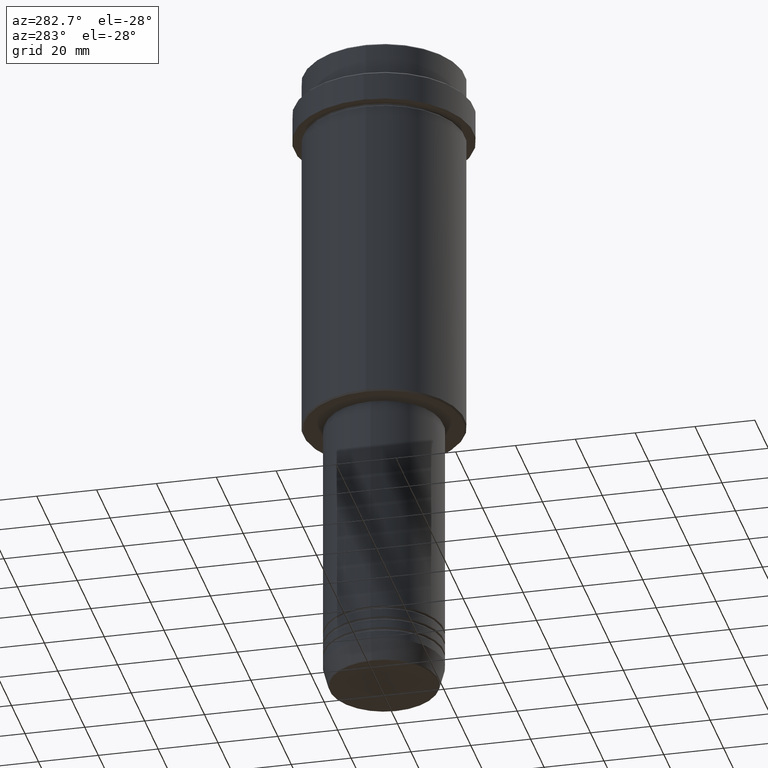
[diagram: clean part render]
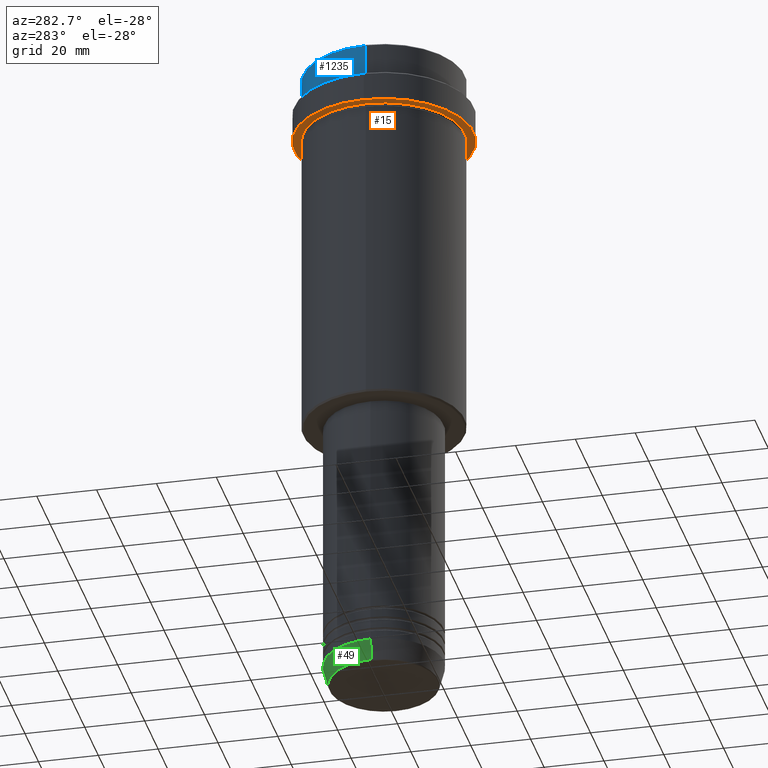
[diagram: same view with three faces highlighted in distinct colors, each labeled with its STEP entity id]
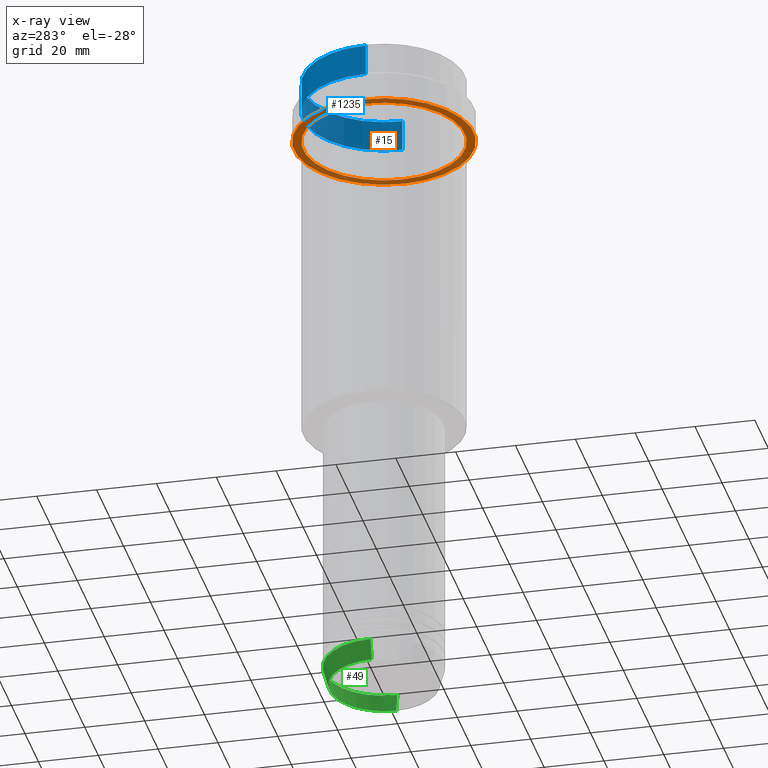
[diagram: x-ray of the same camera — body ghosted, the three highlighted faces saturated]
A machine part, auxiliary view with three faces highlighted in distinct colors.
The next image is the same camera in x-ray (body ghosted, the three faces saturated) — at least one of them is partly hidden behind the body in this view.
Their STEP definitions:

[orange] entity #15 — the highlighted planar face has unit normal (0, 0, -1).
#5 = ORIENTED_EDGE ( 'NONE', *, *, #497, .F. ) ;
#10 = AXIS2_PLACEMENT_3D ( 'NONE', #429, #873, #1180 ) ;
#15 = ADVANCED_FACE ( 'NONE', ( #491, #822 ), #285, .T. ) ;
#88 = VERTEX_POINT ( 'NONE', #598 ) ;
#116 = CIRCLE ( 'NONE', #790, 26.99999999999999289 ) ;
#132 = ORIENTED_EDGE ( 'NONE', *, *, #1120, .F. ) ;
#158 = DIRECTION ( 'NONE',  ( 1.000000000000000000, 0.000000000000000000, 0.000000000000000000 ) ) ;
#159 = VERTEX_POINT ( 'NONE', #1395 ) ;
#170 = CARTESIAN_POINT ( 'NONE',  ( 0.000000000000000000, 0.000000000000000000, -22.00000000000000000 ) ) ;
#285 = PLANE ( 'NONE',  #538 ) ;
#307 = EDGE_LOOP ( 'NONE', ( #1074, #467 ) ) ;
#347 = CARTESIAN_POINT ( 'NONE',  ( -26.99999999999999289, 0.000000000000000000, -22.00000000000000000 ) ) ;
#429 = CARTESIAN_POINT ( 'NONE',  ( 0.000000000000000000, 0.000000000000000000, -22.00000000000000355 ) ) ;
#431 = CIRCLE ( 'NONE', #454, 26.99999999999999289 ) ;
#454 = AXIS2_PLACEMENT_3D ( 'NONE', #1082, #659, #554 ) ;
#467 = ORIENTED_EDGE ( 'NONE', *, *, #512, .T. ) ;
#491 = FACE_BOUND ( 'NONE', #307, .T. ) ;
#497 = EDGE_CURVE ( 'NONE', #88, #501, #517, .T. ) ;
#501 = VERTEX_POINT ( 'NONE', #1138 ) ;
#504 = DIRECTION ( 'NONE',  ( -1.000000000000000000, 0.000000000000000000, 0.000000000000000000 ) ) ;
#512 = EDGE_CURVE ( 'NONE', #159, #1250, #116, .T. ) ;
#517 = CIRCLE ( 'NONE', #610, 29.99999999999999645 ) ;
#538 = AXIS2_PLACEMENT_3D ( 'NONE', #604, #1359, #1037 ) ;
#554 = DIRECTION ( 'NONE',  ( -1.000000000000000000, 0.000000000000000000, 0.000000000000000000 ) ) ;
#598 = CARTESIAN_POINT ( 'NONE',  ( 29.99999999999999645, 0.000000000000000000, -22.00000000000000355 ) ) ;
#604 = CARTESIAN_POINT ( 'NONE',  ( 0.000000000000000000, 29.99999999999999645, -22.00000000000000000 ) ) ;
#610 = AXIS2_PLACEMENT_3D ( 'NONE', #1337, #1149, #158 ) ;
#659 = DIRECTION ( 'NONE',  ( -0.000000000000000000, -0.000000000000000000, 1.000000000000000000 ) ) ;
#785 = CIRCLE ( 'NONE', #10, 29.99999999999999645 ) ;
#790 = AXIS2_PLACEMENT_3D ( 'NONE', #170, #1036, #504 ) ;
#822 = FACE_OUTER_BOUND ( 'NONE', #1200, .T. ) ;
#873 = DIRECTION ( 'NONE',  ( -0.000000000000000000, -0.000000000000000000, 1.000000000000000000 ) ) ;
#1036 = DIRECTION ( 'NONE',  ( -0.000000000000000000, -0.000000000000000000, 1.000000000000000000 ) ) ;
#1037 = DIRECTION ( 'NONE',  ( -1.000000000000000000, 0.000000000000000000, -0.000000000000000000 ) ) ;
#1074 = ORIENTED_EDGE ( 'NONE', *, *, #1095, .T. ) ;
#1082 = CARTESIAN_POINT ( 'NONE',  ( 0.000000000000000000, 0.000000000000000000, -22.00000000000000000 ) ) ;
#1095 = EDGE_CURVE ( 'NONE', #1250, #159, #431, .T. ) ;
#1120 = EDGE_CURVE ( 'NONE', #501, #88, #785, .T. ) ;
#1138 = CARTESIAN_POINT ( 'NONE',  ( -29.99999999999999645, 3.673940397442058389E-15, -22.00000000000000355 ) ) ;
#1149 = DIRECTION ( 'NONE',  ( -0.000000000000000000, -0.000000000000000000, 1.000000000000000000 ) ) ;
#1180 = DIRECTION ( 'NONE',  ( 1.000000000000000000, 0.000000000000000000, 0.000000000000000000 ) ) ;
#1200 = EDGE_LOOP ( 'NONE', ( #5, #132 ) ) ;
#1250 = VERTEX_POINT ( 'NONE', #347 ) ;
#1337 = CARTESIAN_POINT ( 'NONE',  ( 0.000000000000000000, 0.000000000000000000, -22.00000000000000355 ) ) ;
#1359 = DIRECTION ( 'NONE',  ( 0.000000000000000000, 0.000000000000000000, -1.000000000000000000 ) ) ;
#1395 = CARTESIAN_POINT ( 'NONE',  ( 26.99999999999999289, 3.306546357697852944E-15, -22.00000000000000000 ) ) ;

[blue] entity #1235 — the highlighted cylindrical surface (partial cylindrical patch) has radius 27 mm, axis along (-0, -0, 1).
#13 = DIRECTION ( 'NONE',  ( 1.000000000000000000, 0.000000000000000000, 0.000000000000000000 ) ) ;
#26 = LINE ( 'NONE', #229, #281 ) ;
#43 = CARTESIAN_POINT ( 'NONE',  ( -26.99999999999999645, 3.306546357697853339E-15, -11.00000000000000178 ) ) ;
#80 = DIRECTION ( 'NONE',  ( -0.000000000000000000, -0.000000000000000000, 1.000000000000000000 ) ) ;
#82 = VERTEX_POINT ( 'NONE', #172 ) ;
#115 = EDGE_CURVE ( 'NONE', #355, #473, #1278, .T. ) ;
#163 = CIRCLE ( 'NONE', #587, 26.99999999999999645 ) ;
#172 = CARTESIAN_POINT ( 'NONE',  ( -26.99999999999999645, 3.306546357697853339E-15, -0.4999999999999761302 ) ) ;
#193 = CARTESIAN_POINT ( 'NONE',  ( 0.000000000000000000, 0.000000000000000000, -11.00000000000000178 ) ) ;
#204 = ORIENTED_EDGE ( 'NONE', *, *, #115, .T. ) ;
#229 = CARTESIAN_POINT ( 'NONE',  ( -26.99999999999999645, 3.306546357697853339E-15, 0.000000000000000000 ) ) ;
#281 = VECTOR ( 'NONE', #900, 1000.000000000000000 ) ;
#355 = VERTEX_POINT ( 'NONE', #892 ) ;
#413 = ORIENTED_EDGE ( 'NONE', *, *, #528, .T. ) ;
#473 = VERTEX_POINT ( 'NONE', #43 ) ;
#486 = FACE_OUTER_BOUND ( 'NONE', #489, .T. ) ;
#489 = EDGE_LOOP ( 'NONE', ( #204, #1390, #413, #936 ) ) ;
#490 = DIRECTION ( 'NONE',  ( 0.000000000000000000, 0.000000000000000000, -1.000000000000000000 ) ) ;
#498 = VECTOR ( 'NONE', #1222, 1000.000000000000000 ) ;
#528 = EDGE_CURVE ( 'NONE', #82, #964, #163, .T. ) ;
#587 = AXIS2_PLACEMENT_3D ( 'NONE', #1027, #490, #924 ) ;
#771 = LINE ( 'NONE', #1102, #498 ) ;
#774 = CARTESIAN_POINT ( 'NONE',  ( 0.000000000000000000, 0.000000000000000000, 0.000000000000000000 ) ) ;
#830 = CARTESIAN_POINT ( 'NONE',  ( 26.99999999999999645, 0.000000000000000000, -0.4999999999999761302 ) ) ;
#871 = EDGE_CURVE ( 'NONE', #355, #964, #771, .T. ) ;
#883 = AXIS2_PLACEMENT_3D ( 'NONE', #193, #80, #1284 ) ;
#892 = CARTESIAN_POINT ( 'NONE',  ( 26.99999999999999645, 0.000000000000000000, -11.00000000000000178 ) ) ;
#900 = DIRECTION ( 'NONE',  ( -0.000000000000000000, -0.000000000000000000, 1.000000000000000000 ) ) ;
#924 = DIRECTION ( 'NONE',  ( 1.000000000000000000, 0.000000000000000000, 0.000000000000000000 ) ) ;
#936 = ORIENTED_EDGE ( 'NONE', *, *, #871, .F. ) ;
#964 = VERTEX_POINT ( 'NONE', #830 ) ;
#1027 = CARTESIAN_POINT ( 'NONE',  ( 0.000000000000000000, 0.000000000000000000, -0.4999999999999761302 ) ) ;
#1102 = CARTESIAN_POINT ( 'NONE',  ( 26.99999999999999645, 0.000000000000000000, 0.000000000000000000 ) ) ;
#1116 = CYLINDRICAL_SURFACE ( 'NONE', #1186, 26.99999999999999645 ) ;
#1186 = AXIS2_PLACEMENT_3D ( 'NONE', #774, #1323, #13 ) ;
#1222 = DIRECTION ( 'NONE',  ( -0.000000000000000000, -0.000000000000000000, 1.000000000000000000 ) ) ;
#1235 = ADVANCED_FACE ( 'NONE', ( #486 ), #1116, .T. ) ;
#1252 = EDGE_CURVE ( 'NONE', #473, #82, #26, .T. ) ;
#1278 = CIRCLE ( 'NONE', #883, 26.99999999999999645 ) ;
#1284 = DIRECTION ( 'NONE',  ( 1.000000000000000000, 0.000000000000000000, 0.000000000000000000 ) ) ;
#1323 = DIRECTION ( 'NONE',  ( -0.000000000000000000, -0.000000000000000000, 1.000000000000000000 ) ) ;
#1390 = ORIENTED_EDGE ( 'NONE', *, *, #1252, .T. ) ;

[green] entity #49 — the highlighted conical surface has half-angle 15 deg.
#36 = CARTESIAN_POINT ( 'NONE',  ( -18.22365507213718772, 2.340523841790264718E-15, -222.6294095225512706 ) ) ;
#49 = ADVANCED_FACE ( 'NONE', ( #264 ), #282, .T. ) ;
#136 = CARTESIAN_POINT ( 'NONE',  ( 18.22365507213718772, 0.000000000000000000, -222.6294095225512706 ) ) ;
#147 = DIRECTION ( 'NONE',  ( -0.000000000000000000, -0.000000000000000000, 1.000000000000000000 ) ) ;
#153 = LINE ( 'NONE', #605, #424 ) ;
#195 = EDGE_CURVE ( 'NONE', #416, #688, #354, .T. ) ;
#245 = ORIENTED_EDGE ( 'NONE', *, *, #195, .F. ) ;
#264 = FACE_OUTER_BOUND ( 'NONE', #955, .T. ) ;
#282 = CONICAL_SURFACE ( 'NONE', #1328, 20.00000000000000000, 0.2617993877991500740 ) ;
#291 = LINE ( 'NONE', #968, #718 ) ;
#319 = DIRECTION ( 'NONE',  ( -0.000000000000000000, -0.000000000000000000, 1.000000000000000000 ) ) ;
#323 = ORIENTED_EDGE ( 'NONE', *, *, #556, .T. ) ;
#354 = CIRCLE ( 'NONE', #699, 20.00000000000000000 ) ;
#371 = DIRECTION ( 'NONE',  ( 1.000000000000000000, 0.000000000000000000, 0.000000000000000000 ) ) ;
#416 = VERTEX_POINT ( 'NONE', #1230 ) ;
#424 = VECTOR ( 'NONE', #823, 1000.000000000000000 ) ;
#430 = ORIENTED_EDGE ( 'NONE', *, *, #1365, .F. ) ;
#456 = EDGE_CURVE ( 'NONE', #993, #459, #999, .T. ) ;
#459 = VERTEX_POINT ( 'NONE', #36 ) ;
#484 = ORIENTED_EDGE ( 'NONE', *, *, #456, .T. ) ;
#540 = AXIS2_PLACEMENT_3D ( 'NONE', #712, #147, #371 ) ;
#556 = EDGE_CURVE ( 'NONE', #459, #688, #291, .T. ) ;
#605 = CARTESIAN_POINT ( 'NONE',  ( 20.00000000000000000, 0.000000000000000000, -216.0000000000000284 ) ) ;
#622 = CARTESIAN_POINT ( 'NONE',  ( 0.000000000000000000, 0.000000000000000000, -216.0000000000000284 ) ) ;
#641 = DIRECTION ( 'NONE',  ( 1.000000000000000000, 0.000000000000000000, 0.000000000000000000 ) ) ;
#688 = VERTEX_POINT ( 'NONE', #1379 ) ;
#699 = AXIS2_PLACEMENT_3D ( 'NONE', #1072, #319, #641 ) ;
#712 = CARTESIAN_POINT ( 'NONE',  ( 0.000000000000000000, 0.000000000000000000, -222.6294095225512706 ) ) ;
#718 = VECTOR ( 'NONE', #1077, 1000.000000000000000 ) ;
#823 = DIRECTION ( 'NONE',  ( 0.2588190451025213501, 0.000000000000000000, 0.9659258262890680902 ) ) ;
#920 = DIRECTION ( 'NONE',  ( 1.000000000000000000, 0.000000000000000000, 0.000000000000000000 ) ) ;
#955 = EDGE_LOOP ( 'NONE', ( #484, #323, #245, #430 ) ) ;
#968 = CARTESIAN_POINT ( 'NONE',  ( -20.00000000000000000, 2.449293598294706513E-15, -216.0000000000000284 ) ) ;
#993 = VERTEX_POINT ( 'NONE', #136 ) ;
#999 = CIRCLE ( 'NONE', #540, 18.22365507213718772 ) ;
#1072 = CARTESIAN_POINT ( 'NONE',  ( 0.000000000000000000, 0.000000000000000000, -216.0000000000000284 ) ) ;
#1077 = DIRECTION ( 'NONE',  ( -0.2588190451025213501, 3.169619151431772337E-17, 0.9659258262890680902 ) ) ;
#1150 = DIRECTION ( 'NONE',  ( -0.000000000000000000, -0.000000000000000000, 1.000000000000000000 ) ) ;
#1230 = CARTESIAN_POINT ( 'NONE',  ( 20.00000000000000000, 0.000000000000000000, -216.0000000000000284 ) ) ;
#1328 = AXIS2_PLACEMENT_3D ( 'NONE', #622, #1150, #920 ) ;
#1365 = EDGE_CURVE ( 'NONE', #993, #416, #153, .T. ) ;
#1379 = CARTESIAN_POINT ( 'NONE',  ( -20.00000000000000000, 2.449293598294706513E-15, -216.0000000000000284 ) ) ;